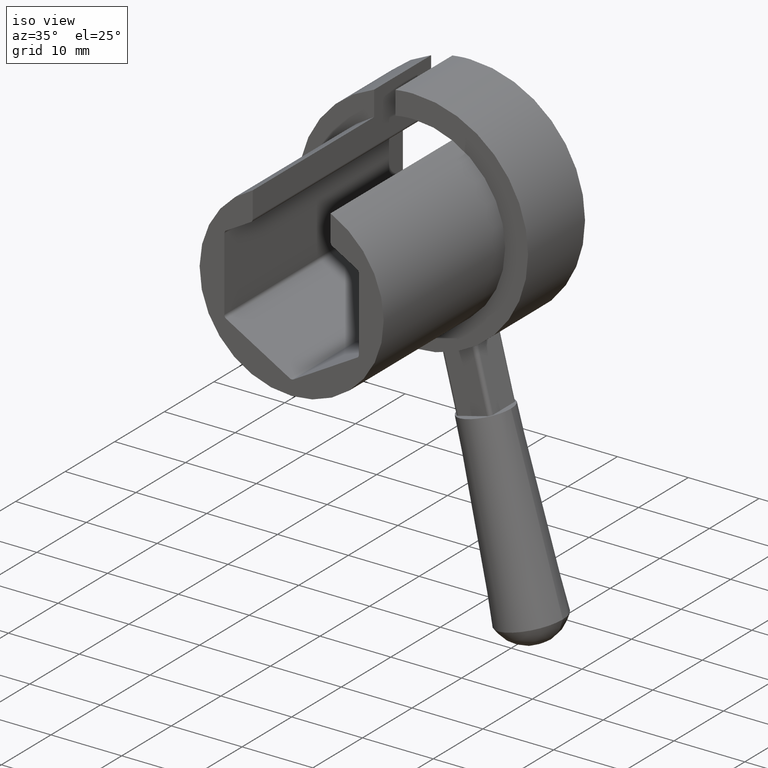
[diagram: clean part render]
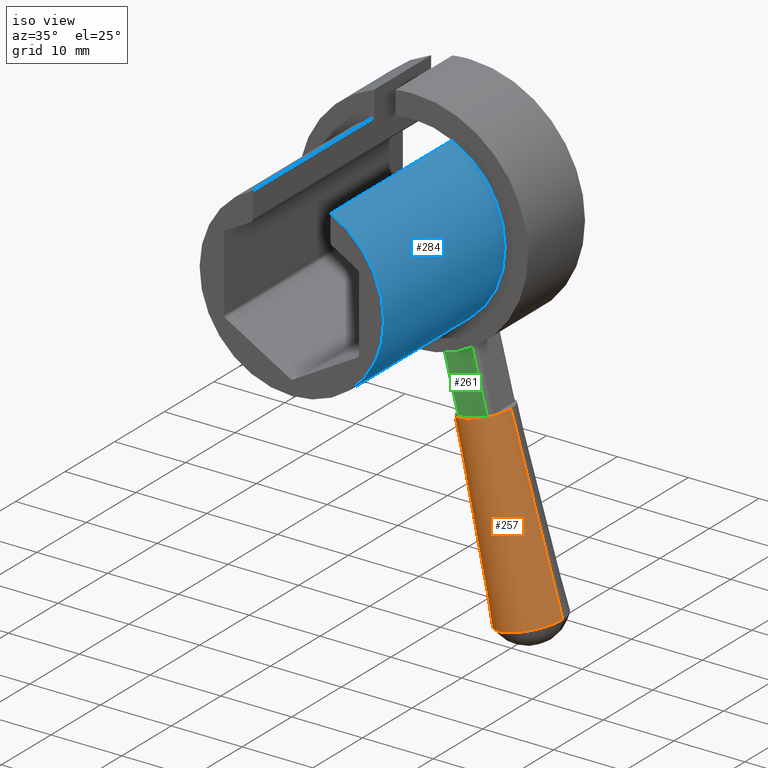
[diagram: same view with three faces highlighted in distinct colors, each labeled with its STEP entity id]
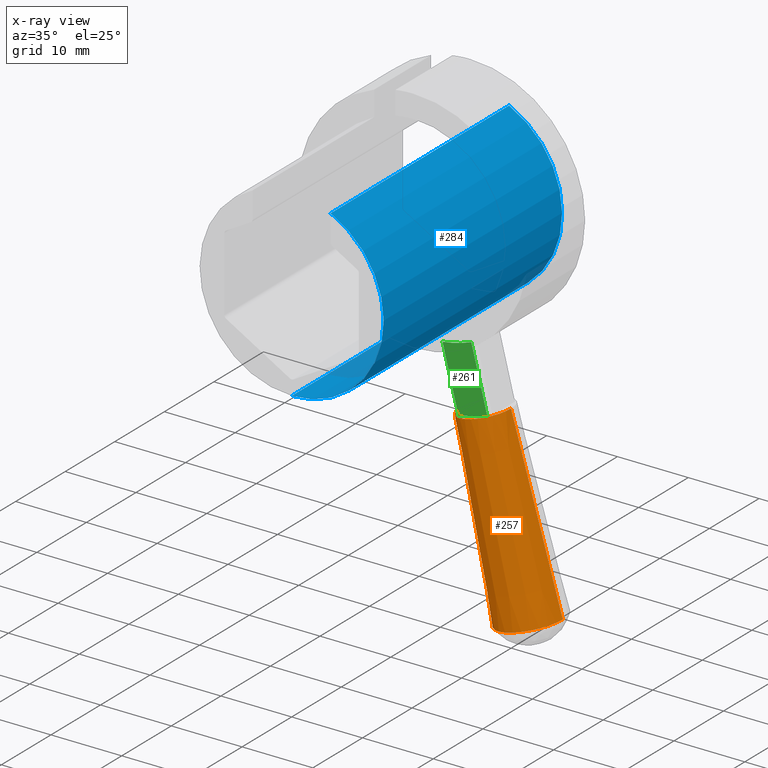
[diagram: x-ray of the same camera — body ghosted, the three highlighted faces saturated]
A machine part, iso view with three faces highlighted in distinct colors.
The next image is the same camera in x-ray (body ghosted, the three faces saturated) — at least one of them is partly hidden behind the body in this view.
Their STEP definitions:

[orange] entity #257 — the highlighted conical surface has half-angle 2 deg.
#3 = VERTEX_POINT ( 'NONE', #474 ) ;
#50 = VERTEX_POINT ( 'NONE', #583 ) ;
#51 = VERTEX_POINT ( 'NONE', #576 ) ;
#115 = EDGE_CURVE ( 'NONE', #50, #185, #716, .T. ) ;
#125 = ORIENTED_EDGE ( 'NONE', *, *, #241, .T. ) ;
#126 = ORIENTED_EDGE ( 'NONE', *, *, #115, .T. ) ;
#127 = ORIENTED_EDGE ( 'NONE', *, *, #128, .F. ) ;
#128 = EDGE_CURVE ( 'NONE', #3, #185, #701, .T. ) ;
#132 = EDGE_CURVE ( 'NONE', #51, #3, #693, .T. ) ;
#185 = VERTEX_POINT ( 'NONE', #794 ) ;
#241 = EDGE_CURVE ( 'NONE', #51, #50, #1152, .T. ) ;
#257 = ADVANCED_FACE ( 'NONE', ( #1375 ), #1368, .T. ) ;
#258 = EDGE_LOOP ( 'NONE', ( #259, #125, #126, #127 ) ) ;
#259 = ORIENTED_EDGE ( 'NONE', *, *, #132, .F. ) ;
#474 = CARTESIAN_POINT ( 'NONE',  ( 17.12075804601743200, 30.24899999999995300, -48.51225111821776200 ) ) ;
#576 = CARTESIAN_POINT ( 'NONE',  ( 9.807811394141534600, 30.24899999999995300, -23.54536972861008300 ) ) ;
#583 = CARTESIAN_POINT ( 'NONE',  ( 2.682569291732227200, 30.24899999999995300, -25.36496445877771000 ) ) ;
#690 = DIRECTION ( 'NONE',  ( 0.2810958385524915900, 4.273955692857151000E-018, -0.9596797015402959200 ) ) ;
#691 = VECTOR ( 'NONE', #690, 1000.000000000000100 ) ;
#692 = CARTESIAN_POINT ( 'NONE',  ( 9.807811394141534600, 30.24899999999995300, -23.54536972861008300 ) ) ;
#693 = LINE ( 'NONE', #692, #691 ) ;
#698 = DIRECTION ( 'NONE',  ( -0.9689051938864448000, 0.0000000000000000000, -0.2474322639832380000 ) ) ;
#699 = DIRECTION ( 'NONE',  ( 0.2474322639832380300, 0.0000000000000000000, -0.9689051938864448000 ) ) ;
#700 = AXIS2_PLACEMENT_3D ( 'NONE', #748, #699, #698 ) ;
#701 = CIRCLE ( 'NONE', #700, 4.584895268955490300 ) ;
#713 = DIRECTION ( 'NONE',  ( 0.2134672313143393700, 0.0000000000000000000, -0.9769502245022467800 ) ) ;
#714 = VECTOR ( 'NONE', #713, 1000.000000000000000 ) ;
#715 = CARTESIAN_POINT ( 'NONE',  ( 2.682569291732226800, 30.24899999999995300, -25.36496445877771000 ) ) ;
#716 = LINE ( 'NONE', #715, #714 ) ;
#748 = CARTESIAN_POINT ( 'NONE',  ( 12.67842920650107000, 30.24899999999995300, -49.64670213474145300 ) ) ;
#794 = CARTESIAN_POINT ( 'NONE',  ( 8.236100366984704400, 30.24899999999995300, -50.78115315126515100 ) ) ;
#1148 = DIRECTION ( 'NONE',  ( -0.9689051938864448000, 0.0000000000000000000, -0.2474322639832376700 ) ) ;
#1149 = DIRECTION ( 'NONE',  ( 0.2474322639832380300, 0.0000000000000000000, -0.9689051938864448000 ) ) ;
#1150 = CARTESIAN_POINT ( 'NONE',  ( 6.245190342936881600, 30.24899999999995300, -24.45516709369389500 ) ) ;
#1151 = AXIS2_PLACEMENT_3D ( 'NONE', #1150, #1149, #1148 ) ;
#1152 = CIRCLE ( 'NONE', #1151, 3.676955262170048300 ) ;
#1365 = DIRECTION ( 'NONE',  ( -0.9689051938864448000, 0.0000000000000000000, -0.2474322639832376700 ) ) ;
#1366 = DIRECTION ( 'NONE',  ( 0.2474322639832380300, 0.0000000000000000000, -0.9689051938864448000 ) ) ;
#1367 = AXIS2_PLACEMENT_3D ( 'NONE', #1370, #1366, #1365 ) ;
#1368 = CONICAL_SURFACE ( 'NONE', #1367, 3.676955262170048300, 0.03490658503988666700 ) ;
#1370 = CARTESIAN_POINT ( 'NONE',  ( 6.245190342936881600, 30.24899999999995300, -24.45516709369389500 ) ) ;
#1375 = FACE_OUTER_BOUND ( 'NONE', #258, .T. ) ;

[blue] entity #284 — the highlighted cylindrical surface (partial cylindrical patch) has radius 13 mm, axis along (0, -1, 0).
#219 = EDGE_CURVE ( 'NONE', #407, #235, #1340, .T. ) ;
#222 = ORIENTED_EDGE ( 'NONE', *, *, #408, .F. ) ;
#223 = ORIENTED_EDGE ( 'NONE', *, *, #234, .F. ) ;
#224 = ORIENTED_EDGE ( 'NONE', *, *, #219, .T. ) ;
#231 = VERTEX_POINT ( 'NONE', #1161 ) ;
#234 = EDGE_CURVE ( 'NONE', #231, #235, #1159, .T. ) ;
#235 = VERTEX_POINT ( 'NONE', #1155 ) ;
#283 = VERTEX_POINT ( 'NONE', #1189 ) ;
#284 = ADVANCED_FACE ( 'NONE', ( #1188 ), #1186, .T. ) ;
#285 = EDGE_LOOP ( 'NONE', ( #223, #222, #405, #224 ) ) ;
#405 = ORIENTED_EDGE ( 'NONE', *, *, #406, .T. ) ;
#406 = EDGE_CURVE ( 'NONE', #283, #407, #962, .T. ) ;
#407 = VERTEX_POINT ( 'NONE', #958 ) ;
#408 = EDGE_CURVE ( 'NONE', #283, #231, #957, .T. ) ;
#953 = DIRECTION ( 'NONE',  ( 0.0000000000000000000, 0.0000000000000000000, 1.000000000000000000 ) ) ;
#954 = DIRECTION ( 'NONE',  ( 0.0000000000000000000, 1.000000000000000000, 0.0000000000000000000 ) ) ;
#955 = CARTESIAN_POINT ( 'NONE',  ( 0.0000000000000000000, 36.00000000000000000, 0.0000000000000000000 ) ) ;
#956 = AXIS2_PLACEMENT_3D ( 'NONE', #955, #954, #953 ) ;
#957 = CIRCLE ( 'NONE', #956, 13.00000000000000200 ) ;
#958 = CARTESIAN_POINT ( 'NONE',  ( 5.500000000000000900, 0.0000000000000000000, 11.77921898938974700 ) ) ;
#959 = DIRECTION ( 'NONE',  ( 0.0000000000000000000, -1.000000000000000000, 0.0000000000000000000 ) ) ;
#960 = VECTOR ( 'NONE', #959, 1000.000000000000000 ) ;
#961 = CARTESIAN_POINT ( 'NONE',  ( 5.500000000000000900, 36.00000000000000000, 11.77921898938974700 ) ) ;
#962 = LINE ( 'NONE', #961, #960 ) ;
#1155 = CARTESIAN_POINT ( 'NONE',  ( 0.0000000000000000000, 0.0000000000000000000, -13.00000000000000200 ) ) ;
#1156 = DIRECTION ( 'NONE',  ( 0.0000000000000000000, -1.000000000000000000, 0.0000000000000000000 ) ) ;
#1157 = VECTOR ( 'NONE', #1156, 1000.000000000000000 ) ;
#1158 = CARTESIAN_POINT ( 'NONE',  ( 0.0000000000000000000, 36.00000000000000000, -13.00000000000000200 ) ) ;
#1159 = LINE ( 'NONE', #1158, #1157 ) ;
#1161 = CARTESIAN_POINT ( 'NONE',  ( 0.0000000000000000000, 36.00000000000000000, -13.00000000000000200 ) ) ;
#1183 = DIRECTION ( 'NONE',  ( 0.0000000000000000000, 0.0000000000000000000, -1.000000000000000000 ) ) ;
#1184 = DIRECTION ( 'NONE',  ( 0.0000000000000000000, -1.000000000000000000, 0.0000000000000000000 ) ) ;
#1185 = AXIS2_PLACEMENT_3D ( 'NONE', #1187, #1184, #1183 ) ;
#1186 = CYLINDRICAL_SURFACE ( 'NONE', #1185, 13.00000000000000200 ) ;
#1187 = CARTESIAN_POINT ( 'NONE',  ( 0.0000000000000000000, 36.00000000000000000, 0.0000000000000000000 ) ) ;
#1188 = FACE_OUTER_BOUND ( 'NONE', #285, .T. ) ;
#1189 = CARTESIAN_POINT ( 'NONE',  ( 5.500000000000000900, 36.00000000000000000, 11.77921898938974700 ) ) ;
#1336 = DIRECTION ( 'NONE',  ( 0.0000000000000000000, 0.0000000000000000000, 1.000000000000000000 ) ) ;
#1337 = DIRECTION ( 'NONE',  ( 0.0000000000000000000, 1.000000000000000000, 0.0000000000000000000 ) ) ;
#1338 = CARTESIAN_POINT ( 'NONE',  ( 0.0000000000000000000, 0.0000000000000000000, 0.0000000000000000000 ) ) ;
#1339 = AXIS2_PLACEMENT_3D ( 'NONE', #1338, #1337, #1336 ) ;
#1340 = CIRCLE ( 'NONE', #1339, 13.00000000000000200 ) ;

[green] entity #261 — the highlighted planar face has unit normal (0, 1, 0).
#147 = ORIENTED_EDGE ( 'NONE', *, *, #148, .F. ) ;
#148 = EDGE_CURVE ( 'NONE', #149, #155, #759, .T. ) ;
#149 = VERTEX_POINT ( 'NONE', #734 ) ;
#155 = VERTEX_POINT ( 'NONE', #791 ) ;
#156 = ORIENTED_EDGE ( 'NONE', *, *, #277, .T. ) ;
#157 = VERTEX_POINT ( 'NONE', #844 ) ;
#187 = VERTEX_POINT ( 'NONE', #793 ) ;
#188 = ORIENTED_EDGE ( 'NONE', *, *, #189, .T. ) ;
#189 = EDGE_CURVE ( 'NONE', #187, #155, #792, .T. ) ;
#261 = ADVANCED_FACE ( 'NONE', ( #1364 ), #1369, .F. ) ;
#262 = EDGE_LOOP ( 'NONE', ( #147, #156, #278, #188 ) ) ;
#277 = EDGE_CURVE ( 'NONE', #149, #157, #1210, .T. ) ;
#278 = ORIENTED_EDGE ( 'NONE', *, *, #279, .F. ) ;
#279 = EDGE_CURVE ( 'NONE', #187, #157, #1200, .T. ) ;
#734 = CARTESIAN_POINT ( 'NONE',  ( 1.949862106156441800, 27.64899999999999700, -16.12251958494625000 ) ) ;
#735 = CARTESIAN_POINT ( 'NONE',  ( 0.0000000000000000000, 27.64899999999999700, 0.0000000000000000000 ) ) ;
#756 = DIRECTION ( 'NONE',  ( 0.0000000000000000000, 0.0000000000000000000, -1.000000000000000000 ) ) ;
#757 = DIRECTION ( 'NONE',  ( 0.0000000000000000000, -1.000000000000000000, 0.0000000000000000000 ) ) ;
#758 = AXIS2_PLACEMENT_3D ( 'NONE', #735, #757, #756 ) ;
#759 = CIRCLE ( 'NONE', #758, 16.24000000000000600 ) ;
#791 = CARTESIAN_POINT ( 'NONE',  ( 6.019263920479513500, 27.64899999999999700, -15.08330407621664700 ) ) ;
#792 = LINE ( 'NONE', #814, #813 ) ;
#793 = CARTESIAN_POINT ( 'NONE',  ( 8.279891250098458500, 27.64899999999999700, -23.93555933932907800 ) ) ;
#812 = DIRECTION ( 'NONE',  ( -0.2474322639832377300, 0.0000000000000000000, 0.9689051938864449200 ) ) ;
#813 = VECTOR ( 'NONE', #812, 1000.000000000000100 ) ;
#814 = CARTESIAN_POINT ( 'NONE',  ( 8.279891250098458500, 27.64899999999999700, -23.93555933932907800 ) ) ;
#844 = CARTESIAN_POINT ( 'NONE',  ( 4.210489435775387300, 27.64899999999999700, -24.97477484805867600 ) ) ;
#1197 = DIRECTION ( 'NONE',  ( -0.9689051938864448000, 0.0000000000000000000, -0.2474322639832380300 ) ) ;
#1198 = VECTOR ( 'NONE', #1197, 1000.000000000000100 ) ;
#1199 = CARTESIAN_POINT ( 'NONE',  ( 8.764343847041681500, 27.64899999999999700, -23.81184320733746100 ) ) ;
#1200 = LINE ( 'NONE', #1199, #1198 ) ;
#1201 = DIRECTION ( 'NONE',  ( 0.2474322639832377300, 0.0000000000000000000, -0.9689051938864449200 ) ) ;
#1202 = VECTOR ( 'NONE', #1201, 1000.000000000000100 ) ;
#1209 = CARTESIAN_POINT ( 'NONE',  ( 4.210489435775385500, 27.64899999999999700, -24.97477484805867600 ) ) ;
#1210 = LINE ( 'NONE', #1209, #1202 ) ;
#1360 = DIRECTION ( 'NONE',  ( 0.0000000000000000000, 0.0000000000000000000, 1.000000000000000000 ) ) ;
#1361 = DIRECTION ( 'NONE',  ( 0.0000000000000000000, 1.000000000000000000, 0.0000000000000000000 ) ) ;
#1362 = CARTESIAN_POINT ( 'NONE',  ( 8.764343847041681500, 27.64899999999999700, -23.81184320733746100 ) ) ;
#1363 = AXIS2_PLACEMENT_3D ( 'NONE', #1362, #1361, #1360 ) ;
#1364 = FACE_OUTER_BOUND ( 'NONE', #262, .T. ) ;
#1369 = PLANE ( 'NONE',  #1363 ) ;